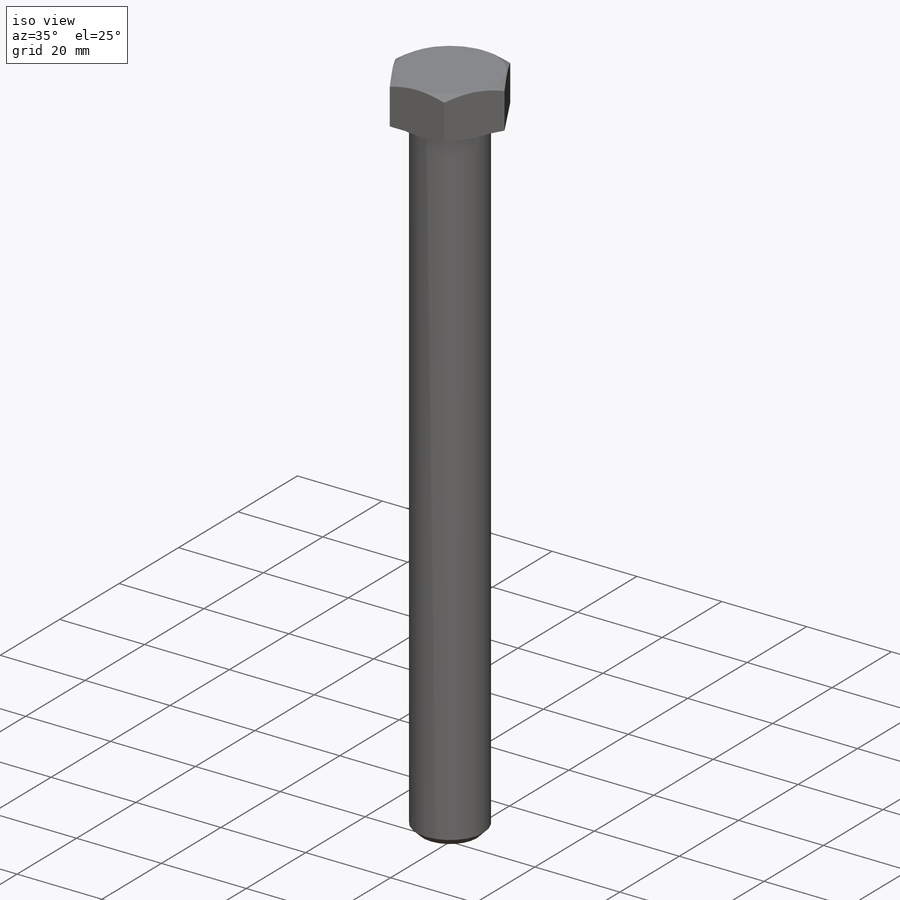
[diagram: iso view]
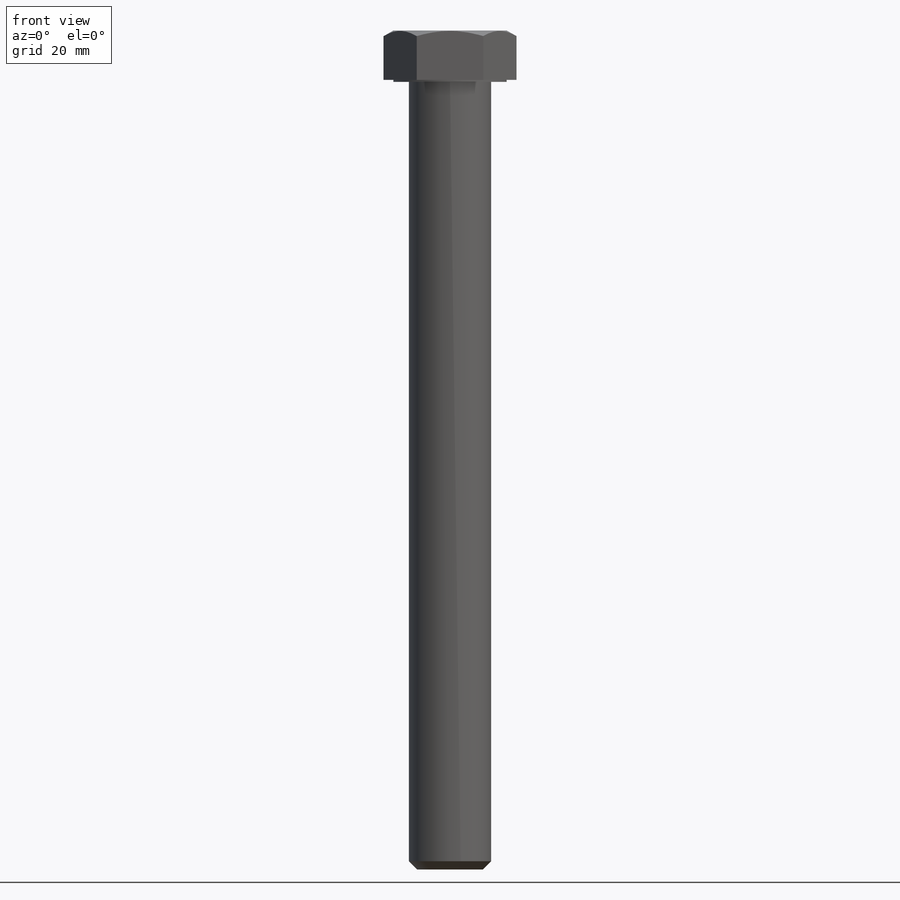
[diagram: front view]
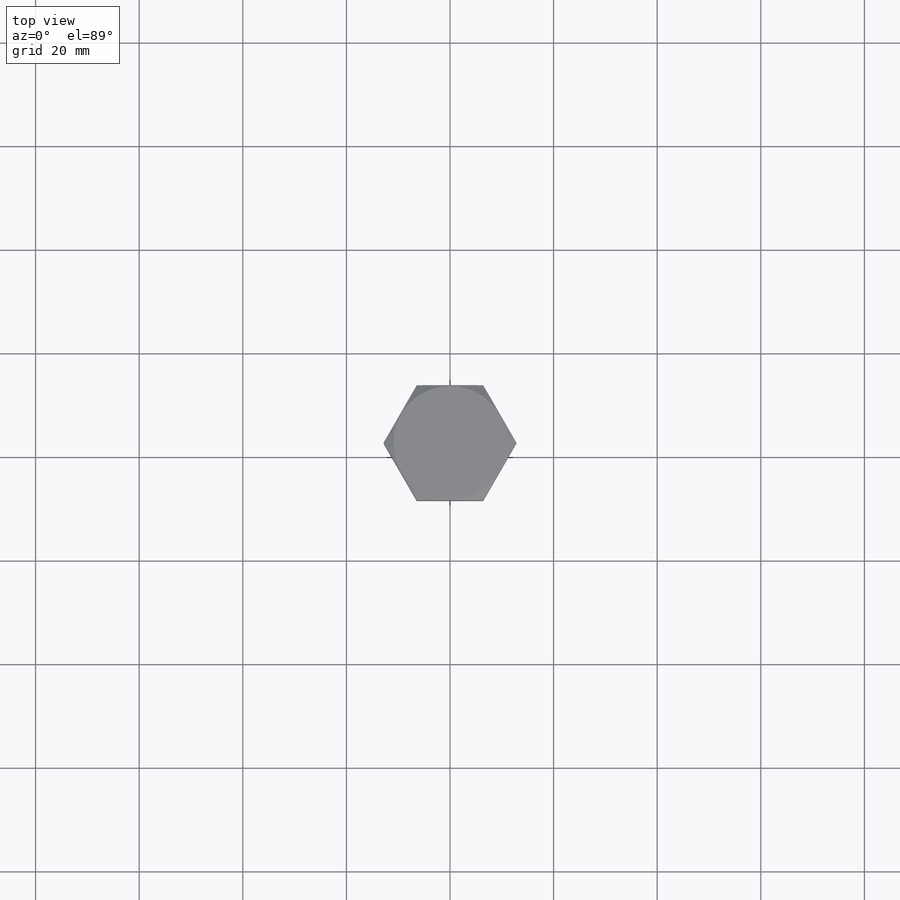
[diagram: top view]
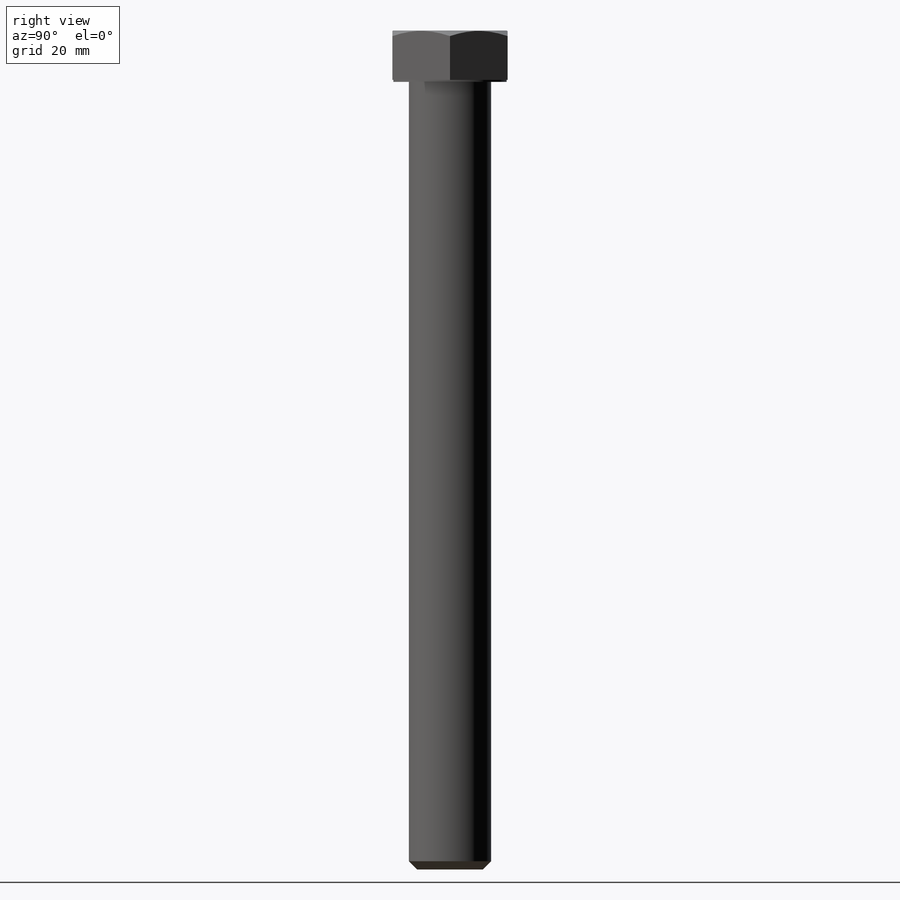
[diagram: right view]
SOLIDWORKS PART (.sldprt)
format: sldprt  version: not decoded by parser v0  size: 200,704 bytes
history: native  units: mm
features: sketch x5, extrude x3, material x1, chamfer x1, cut_extrude x1, helix x1 (+11 scaffold rows collapsed)
feature tree (23):
  scaffold x11  (default folders/planes/origin — collapsed)
  material  "Cast Alloy Steel"
  sketch  "Sketch1"  dims[D1=~61.941542deg]
  extrude  "Boss-Extrude1"  Depth=9.525mm
  sketch  "Sketch2"  dims[D1=11.1125mm]
  extrude  "Boss-Extrude2"  Depth=0.381mm
  sketch  "Sketch3"  dims[D1=15.875mm]
  extrude  "Boss-Extrude3"  Depth=152.4mm
  chamfer  "Chamfer1"  Distance=1.5875mm Angle=45deg
  sketch  "Sketch4"  dims[D1=~5.174285mm]
  cut_extrude  "Cut-Extrude2"  [1 undecoded]
  sketch  "Sketch6"  dims[D1=~8.347615mm]
  helix  "Helix/Spiral1"  Pitch=42.8498mm
decode coverage: 10 of 11 modeling features carry decoded parameters
note: ~ marks probable driven/reference dimensions
note: 1 parameter value undecoded
note: suppression state not decoded; provenance and decode notes live in map.json
